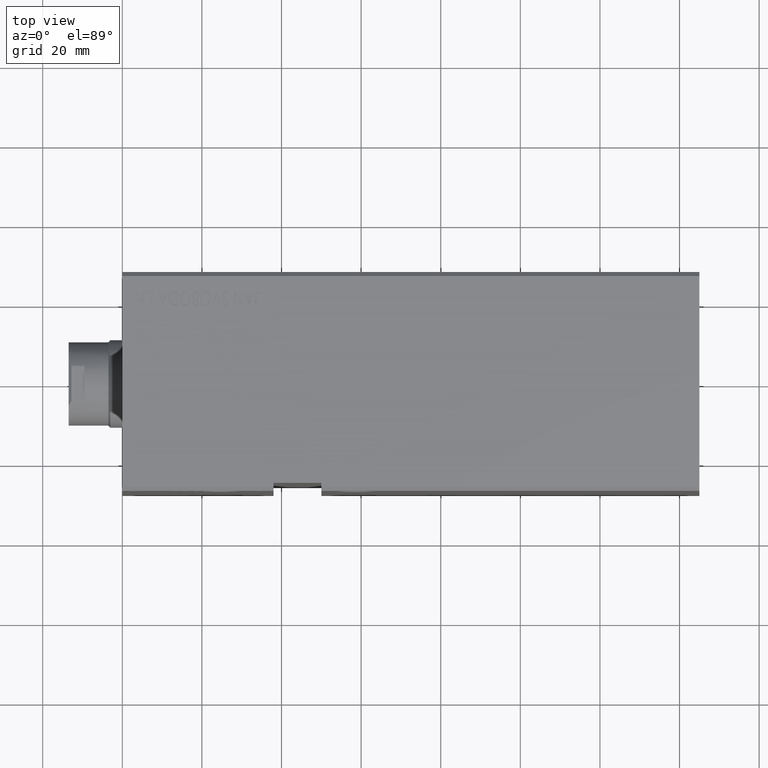
[diagram: clean part render]
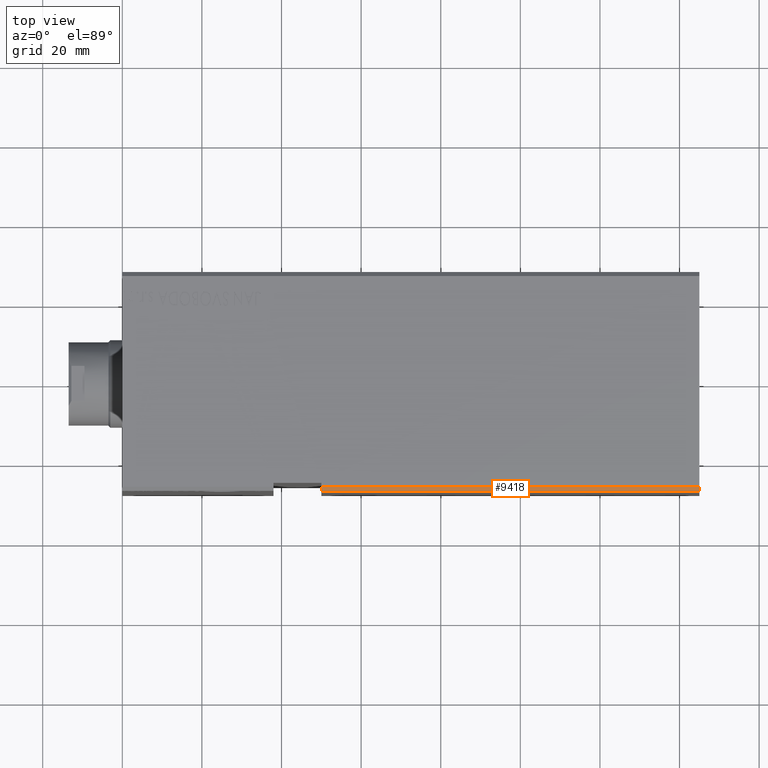
[diagram: same view with one face highlighted and labeled with its STEP entity id]
A machine part, top view. The second image highlights one B-rep face of the part: STEP entity #9418.
In plain terms, the highlighted planar face has unit normal (0, 0.7071, -0.7071).
Its self-contained STEP definition (entity closure, byte-faithful):
#78 = EDGE_CURVE ( 'NONE', #8702, #13821, #16247, .T. ) ;
#284 = LINE ( 'NONE', #15479, #21459 ) ;
#5460 = LINE ( 'NONE', #17673, #13500 ) ;
#7094 = ORIENTED_EDGE ( 'NONE', *, *, #10751, .F. ) ;
#7297 = PLANE ( 'NONE',  #19197 ) ;
#8465 = VERTEX_POINT ( 'NONE', #32858 ) ;
#8702 = VERTEX_POINT ( 'NONE', #13838 ) ;
#9418 = ADVANCED_FACE ( 'NONE', ( #35479 ), #7297, .F. ) ;
#10219 = DIRECTION ( 'NONE',  ( 0.000000000000000000, -0.7071067811865474617, -0.7071067811865474617 ) ) ;
#10540 = VECTOR ( 'NONE', #17859, 1000.000000000000000 ) ;
#10751 = EDGE_CURVE ( 'NONE', #20320, #8465, #5460, .T. ) ;
#13500 = VECTOR ( 'NONE', #27460, 1000.000000000000114 ) ;
#13821 = VERTEX_POINT ( 'NONE', #36440 ) ;
#13838 = CARTESIAN_POINT ( 'NONE',  ( 49.99999999999999289, -26.50000000000000711, 37.50000000000000711 ) ) ;
#15479 = CARTESIAN_POINT ( 'NONE',  ( 145.0000000000000000, -27.50000000000000711, 36.50000000000000711 ) ) ;
#15708 = EDGE_CURVE ( 'NONE', #20320, #8702, #17063, .T. ) ;
#15839 = VECTOR ( 'NONE', #10219, 1000.000000000000114 ) ;
#16247 = LINE ( 'NONE', #34805, #15839 ) ;
#16529 = DIRECTION ( 'NONE',  ( 0.000000000000000000, 0.7071067811865474617, 0.7071067811865474617 ) ) ;
#17063 = LINE ( 'NONE', #29655, #10540 ) ;
#17673 = CARTESIAN_POINT ( 'NONE',  ( 145.0000000000000000, -26.50000000000000711, 37.50000000000000711 ) ) ;
#17859 = DIRECTION ( 'NONE',  ( -1.000000000000000000, -0.000000000000000000, -0.000000000000000000 ) ) ;
#19197 = AXIS2_PLACEMENT_3D ( 'NONE', #28718, #20111, #16529 ) ;
#20111 = DIRECTION ( 'NONE',  ( 0.000000000000000000, 0.7071067811865475727, -0.7071067811865475727 ) ) ;
#20320 = VERTEX_POINT ( 'NONE', #39026 ) ;
#21459 = VECTOR ( 'NONE', #31252, 1000.000000000000000 ) ;
#22082 = ORIENTED_EDGE ( 'NONE', *, *, #15708, .T. ) ;
#27460 = DIRECTION ( 'NONE',  ( 0.000000000000000000, -0.7071067811865474617, -0.7071067811865474617 ) ) ;
#28368 = ORIENTED_EDGE ( 'NONE', *, *, #78, .T. ) ;
#28718 = CARTESIAN_POINT ( 'NONE',  ( 145.0000000000000000, -26.50000000000000711, 37.50000000000000711 ) ) ;
#29655 = CARTESIAN_POINT ( 'NONE',  ( 145.0000000000000000, -26.50000000000000711, 37.50000000000000711 ) ) ;
#31252 = DIRECTION ( 'NONE',  ( -1.000000000000000000, -0.000000000000000000, -0.000000000000000000 ) ) ;
#32302 = EDGE_CURVE ( 'NONE', #8465, #13821, #284, .T. ) ;
#32858 = CARTESIAN_POINT ( 'NONE',  ( 145.0000000000000000, -27.50000000000000711, 36.50000000000000711 ) ) ;
#33742 = ORIENTED_EDGE ( 'NONE', *, *, #32302, .F. ) ;
#34805 = CARTESIAN_POINT ( 'NONE',  ( 49.99999999999998579, -26.50000000000000711, 37.50000000000000711 ) ) ;
#35479 = FACE_OUTER_BOUND ( 'NONE', #36741, .T. ) ;
#36440 = CARTESIAN_POINT ( 'NONE',  ( 49.99999999999999289, -27.50000000000000711, 36.50000000000000711 ) ) ;
#36741 = EDGE_LOOP ( 'NONE', ( #22082, #28368, #33742, #7094 ) ) ;
#39026 = CARTESIAN_POINT ( 'NONE',  ( 145.0000000000000000, -26.50000000000000711, 37.50000000000000711 ) ) ;